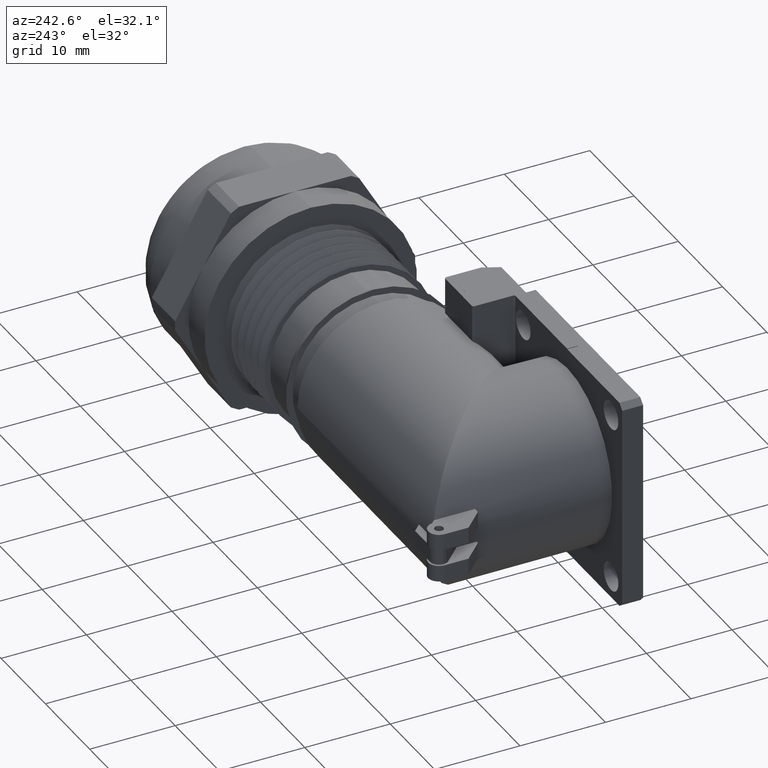
[diagram: clean part render]
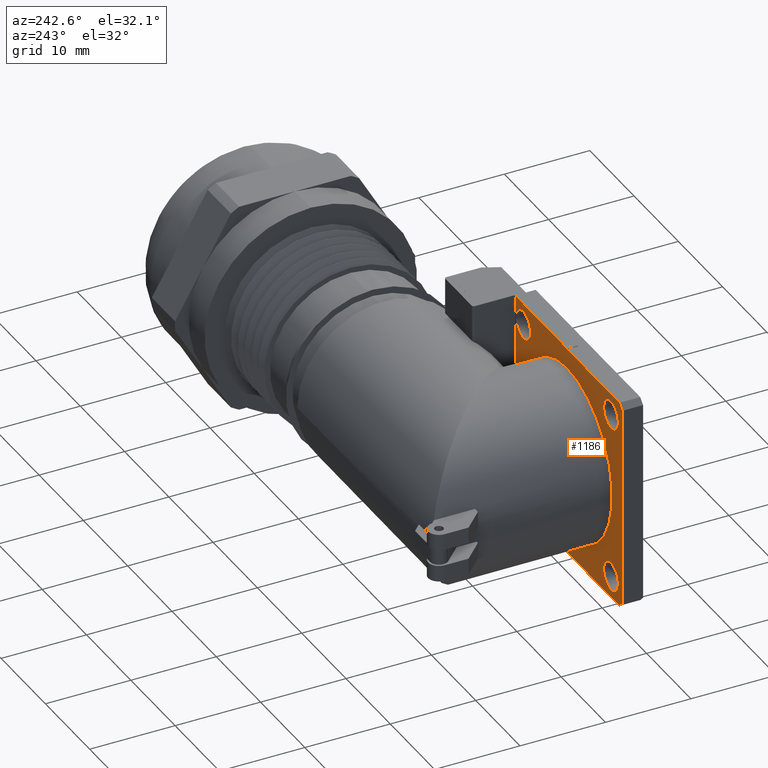
[diagram: same view with one face highlighted and labeled with its STEP entity id]
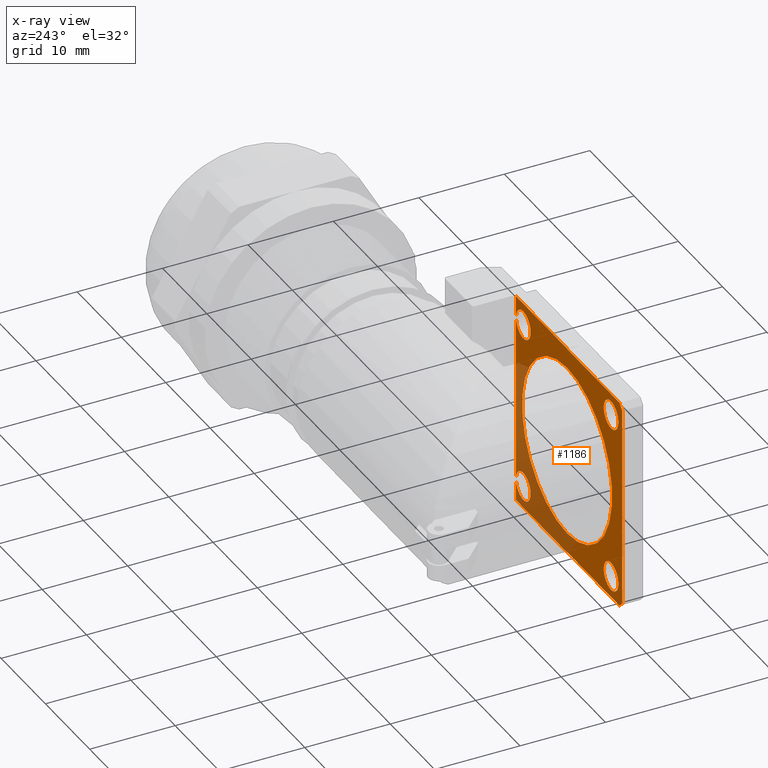
[diagram: x-ray of the same camera — body ghosted, the highlighted face saturated]
A machine part, auxiliary view. The second image highlights one B-rep face of the part: STEP entity #1186.
The next image is the same camera in x-ray: the body ghosted, the highlighted face saturated — about 28% of this face is hidden behind the body in this view.
In plain terms, the highlighted planar face has unit normal (0, -1, 0).
Its self-contained STEP definition (entity closure, byte-faithful):
#849 = VERTEX_POINT ( 'NONE', #3261 ) ;
#851 = EDGE_CURVE ( 'NONE', #849, #852, #3260, .T. ) ;
#852 = VERTEX_POINT ( 'NONE', #3255 ) ;
#854 = EDGE_CURVE ( 'NONE', #939, #958, #3254, .T. ) ;
#859 = VERTEX_POINT ( 'NONE', #3238 ) ;
#888 = EDGE_CURVE ( 'NONE', #889, #899, #3421, .T. ) ;
#889 = VERTEX_POINT ( 'NONE', #3416 ) ;
#899 = VERTEX_POINT ( 'NONE', #3394 ) ;
#914 = VERTEX_POINT ( 'NONE', #3527 ) ;
#939 = VERTEX_POINT ( 'NONE', #3474 ) ;
#958 = VERTEX_POINT ( 'NONE', #3442 ) ;
#1001 = VERTEX_POINT ( 'NONE', #3767 ) ;
#1003 = EDGE_CURVE ( 'NONE', #1001, #859, #3766, .T. ) ;
#1071 = EDGE_CURVE ( 'NONE', #914, #1104, #3689, .T. ) ;
#1104 = VERTEX_POINT ( 'NONE', #3589 ) ;
#1168 = ORIENTED_EDGE ( 'NONE', *, *, #854, .T. ) ;
#1169 = ORIENTED_EDGE ( 'NONE', *, *, #1170, .T. ) ;
#1170 = EDGE_CURVE ( 'NONE', #958, #939, #3936, .T. ) ;
#1171 = EDGE_LOOP ( 'NONE', ( #1172, #1217 ) ) ;
#1172 = ORIENTED_EDGE ( 'NONE', *, *, #888, .T. ) ;
#1184 = VERTEX_POINT ( 'NONE', #3973 ) ;
#1185 = VERTEX_POINT ( 'NONE', #3972 ) ;
#1186 = ADVANCED_FACE ( 'NONE', ( #3971, #3970, #3969, #3968, #3967, #3966 ), #3965, .F. ) ;
#1187 = ORIENTED_EDGE ( 'NONE', *, *, #1188, .F. ) ;
#1188 = EDGE_CURVE ( 'NONE', #852, #849, #3960, .T. ) ;
#1189 = ORIENTED_EDGE ( 'NONE', *, *, #851, .F. ) ;
#1193 = ORIENTED_EDGE ( 'NONE', *, *, #1003, .F. ) ;
#1194 = EDGE_CURVE ( 'NONE', #1104, #914, #3953, .T. ) ;
#1195 = EDGE_LOOP ( 'NONE', ( #1220, #1221 ) ) ;
#1196 = ORIENTED_EDGE ( 'NONE', *, *, #1235, .T. ) ;
#1217 = ORIENTED_EDGE ( 'NONE', *, *, #1218, .T. ) ;
#1218 = EDGE_CURVE ( 'NONE', #899, #889, #3851, .T. ) ;
#1220 = ORIENTED_EDGE ( 'NONE', *, *, #1194, .F. ) ;
#1221 = ORIENTED_EDGE ( 'NONE', *, *, #1071, .F. ) ;
#1227 = ORIENTED_EDGE ( 'NONE', *, *, #1228, .F. ) ;
#1228 = EDGE_CURVE ( 'NONE', #1229, #1233, #3831, .T. ) ;
#1229 = VERTEX_POINT ( 'NONE', #3827 ) ;
#1230 = ORIENTED_EDGE ( 'NONE', *, *, #1231, .F. ) ;
#1231 = EDGE_CURVE ( 'NONE', #1232, #1229, #3825, .T. ) ;
#1232 = VERTEX_POINT ( 'NONE', #4129 ) ;
#1233 = VERTEX_POINT ( 'NONE', #4128 ) ;
#1235 = EDGE_CURVE ( 'NONE', #1185, #1184, #4130, .T. ) ;
#1241 = ORIENTED_EDGE ( 'NONE', *, *, #1260, .T. ) ;
#1242 = ORIENTED_EDGE ( 'NONE', *, *, #1243, .F. ) ;
#1243 = EDGE_CURVE ( 'NONE', #1244, #1232, #4267, .T. ) ;
#1244 = VERTEX_POINT ( 'NONE', #4137 ) ;
#1245 = ORIENTED_EDGE ( 'NONE', *, *, #1246, .F. ) ;
#1246 = EDGE_CURVE ( 'NONE', #1266, #1244, #4136, .T. ) ;
#1247 = ORIENTED_EDGE ( 'NONE', *, *, #1265, .F. ) ;
#1251 = EDGE_LOOP ( 'NONE', ( #1252, #1255, #1258, #1227, #1230, #1242, #1245, #1247, #1241, #1196 ) ) ;
#1252 = ORIENTED_EDGE ( 'NONE', *, *, #1253, .F. ) ;
#1253 = EDGE_CURVE ( 'NONE', #1254, #1184, #4238, .T. ) ;
#1254 = VERTEX_POINT ( 'NONE', #4121 ) ;
#1255 = ORIENTED_EDGE ( 'NONE', *, *, #1256, .F. ) ;
#1256 = EDGE_CURVE ( 'NONE', #1257, #1254, #4120, .T. ) ;
#1257 = VERTEX_POINT ( 'NONE', #4116 ) ;
#1258 = ORIENTED_EDGE ( 'NONE', *, *, #1259, .F. ) ;
#1259 = EDGE_CURVE ( 'NONE', #1233, #1257, #4115, .T. ) ;
#1260 = EDGE_CURVE ( 'NONE', #1263, #1185, #4111, .T. ) ;
#1263 = VERTEX_POINT ( 'NONE', #4102 ) ;
#1265 = EDGE_CURVE ( 'NONE', #1263, #1266, #4101, .T. ) ;
#1266 = VERTEX_POINT ( 'NONE', #4097 ) ;
#1272 = EDGE_LOOP ( 'NONE', ( #1187, #1189 ) ) ;
#1282 = EDGE_LOOP ( 'NONE', ( #1283, #1193 ) ) ;
#1283 = ORIENTED_EDGE ( 'NONE', *, *, #1284, .F. ) ;
#1284 = EDGE_CURVE ( 'NONE', #859, #1001, #4263, .T. ) ;
#1285 = EDGE_LOOP ( 'NONE', ( #1168, #1169 ) ) ;
#3238 = CARTESIAN_POINT ( 'NONE',  ( -0.4100000000000001400, -0.4290000000000000500, -0.3249999999999999000 ) ) ;
#3250 = DIRECTION ( 'NONE',  ( 0.0000000000000000000, 0.0000000000000000000, -1.000000000000000000 ) ) ;
#3251 = DIRECTION ( 'NONE',  ( 0.0000000000000000000, -1.000000000000000000, 0.0000000000000000000 ) ) ;
#3252 = CARTESIAN_POINT ( 'NONE',  ( -1.189999999999999500, -0.4289999999999999900, -0.3899999999999999600 ) ) ;
#3253 = AXIS2_PLACEMENT_3D ( 'NONE', #3252, #3251, #3250 ) ;
#3254 = CIRCLE ( 'NONE', #3253, 0.06500000000000012700 ) ;
#3255 = CARTESIAN_POINT ( 'NONE',  ( -0.4099999999999999800, -0.4290000000000000500, 0.4549999999999995700 ) ) ;
#3256 = DIRECTION ( 'NONE',  ( -1.000000000000000000, 0.0000000000000000000, 0.0000000000000000000 ) ) ;
#3257 = DIRECTION ( 'NONE',  ( 0.0000000000000000000, 1.000000000000000000, 0.0000000000000000000 ) ) ;
#3258 = CARTESIAN_POINT ( 'NONE',  ( -0.4099999999999999800, -0.4290000000000000500, 0.3899999999999995700 ) ) ;
#3259 = AXIS2_PLACEMENT_3D ( 'NONE', #3258, #3257, #3256 ) ;
#3260 = CIRCLE ( 'NONE', #3259, 0.06499999999999998800 ) ;
#3261 = CARTESIAN_POINT ( 'NONE',  ( -0.4099999999999999800, -0.4290000000000000500, 0.3249999999999996200 ) ) ;
#3394 = CARTESIAN_POINT ( 'NONE',  ( -1.189999999999999500, -0.4289999999999999900, 0.3249999999999994000 ) ) ;
#3416 = CARTESIAN_POINT ( 'NONE',  ( -1.189999999999999500, -0.4289999999999999900, 0.4549999999999996300 ) ) ;
#3417 = DIRECTION ( 'NONE',  ( 0.0000000000000000000, 0.0000000000000000000, -1.000000000000000000 ) ) ;
#3418 = DIRECTION ( 'NONE',  ( 0.0000000000000000000, -1.000000000000000000, 0.0000000000000000000 ) ) ;
#3419 = CARTESIAN_POINT ( 'NONE',  ( -1.189999999999999500, -0.4289999999999999900, 0.3899999999999995100 ) ) ;
#3420 = AXIS2_PLACEMENT_3D ( 'NONE', #3419, #3418, #3417 ) ;
#3421 = CIRCLE ( 'NONE', #3420, 0.06500000000000012700 ) ;
#3442 = CARTESIAN_POINT ( 'NONE',  ( -1.189999999999999500, -0.4289999999999999900, -0.4550000000000000700 ) ) ;
#3474 = CARTESIAN_POINT ( 'NONE',  ( -1.189999999999999500, -0.4289999999999999900, -0.3249999999999997900 ) ) ;
#3527 = CARTESIAN_POINT ( 'NONE',  ( -0.8000000000000001600, -0.4290000000000000500, 0.4000000000000000200 ) ) ;
#3589 = CARTESIAN_POINT ( 'NONE',  ( -0.8000000000000001600, -0.4290000000000000500, -0.4000000000000000200 ) ) ;
#3685 = DIRECTION ( 'NONE',  ( 0.0000000000000000000, 0.0000000000000000000, -1.000000000000000000 ) ) ;
#3686 = DIRECTION ( 'NONE',  ( 0.0000000000000000000, 1.000000000000000000, 0.0000000000000000000 ) ) ;
#3687 = CARTESIAN_POINT ( 'NONE',  ( -0.8000000000000001600, -0.4290000000000000500, 0.0000000000000000000 ) ) ;
#3688 = AXIS2_PLACEMENT_3D ( 'NONE', #3687, #3686, #3685 ) ;
#3689 = CIRCLE ( 'NONE', #3688, 0.4000000000000000200 ) ;
#3762 = DIRECTION ( 'NONE',  ( -1.000000000000000000, 0.0000000000000000000, 0.0000000000000000000 ) ) ;
#3763 = DIRECTION ( 'NONE',  ( 0.0000000000000000000, 1.000000000000000000, 0.0000000000000000000 ) ) ;
#3764 = CARTESIAN_POINT ( 'NONE',  ( -0.4100000000000001400, -0.4290000000000000500, -0.3899999999999998500 ) ) ;
#3765 = AXIS2_PLACEMENT_3D ( 'NONE', #3764, #3763, #3762 ) ;
#3766 = CIRCLE ( 'NONE', #3765, 0.06499999999999998800 ) ;
#3767 = CARTESIAN_POINT ( 'NONE',  ( -0.4100000000000001400, -0.4290000000000000500, -0.4549999999999998500 ) ) ;
#3822 = DIRECTION ( 'NONE',  ( -0.7071067811865465700, 0.0000000000000000000, -0.7071067811865484600 ) ) ;
#3823 = VECTOR ( 'NONE', #3822, 39.37007874015748100 ) ;
#3824 = CARTESIAN_POINT ( 'NONE',  ( -1.289999999999999600, -0.4289999999999999900, 0.4649999999999990800 ) ) ;
#3825 = LINE ( 'NONE', #3824, #3823 ) ;
#3827 = CARTESIAN_POINT ( 'NONE',  ( -1.289999999999999600, -0.4289999999999999900, 0.4649999999999990300 ) ) ;
#3828 = DIRECTION ( 'NONE',  ( 1.174988384371725800E-015, 0.0000000000000000000, -1.000000000000000000 ) ) ;
#3829 = VECTOR ( 'NONE', #3828, 39.37007874015748100 ) ;
#3830 = CARTESIAN_POINT ( 'NONE',  ( -1.289999999999998500, -0.4289999999999999900, -0.4650000000000010200 ) ) ;
#3831 = LINE ( 'NONE', #3830, #3829 ) ;
#3847 = DIRECTION ( 'NONE',  ( 0.0000000000000000000, 0.0000000000000000000, -1.000000000000000000 ) ) ;
#3848 = DIRECTION ( 'NONE',  ( 0.0000000000000000000, -1.000000000000000000, 0.0000000000000000000 ) ) ;
#3849 = CARTESIAN_POINT ( 'NONE',  ( -1.189999999999999500, -0.4289999999999999900, 0.3899999999999995100 ) ) ;
#3850 = AXIS2_PLACEMENT_3D ( 'NONE', #3849, #3848, #3847 ) ;
#3851 = CIRCLE ( 'NONE', #3850, 0.06500000000000012700 ) ;
#3932 = DIRECTION ( 'NONE',  ( 0.0000000000000000000, 0.0000000000000000000, -1.000000000000000000 ) ) ;
#3933 = DIRECTION ( 'NONE',  ( 0.0000000000000000000, -1.000000000000000000, 0.0000000000000000000 ) ) ;
#3934 = CARTESIAN_POINT ( 'NONE',  ( -1.189999999999999500, -0.4289999999999999900, -0.3899999999999999600 ) ) ;
#3935 = AXIS2_PLACEMENT_3D ( 'NONE', #3934, #3933, #3932 ) ;
#3936 = CIRCLE ( 'NONE', #3935, 0.06500000000000012700 ) ;
#3944 = DIRECTION ( 'NONE',  ( 0.0000000000000000000, 0.0000000000000000000, -1.000000000000000000 ) ) ;
#3945 = DIRECTION ( 'NONE',  ( 0.0000000000000000000, 1.000000000000000000, 0.0000000000000000000 ) ) ;
#3946 = CARTESIAN_POINT ( 'NONE',  ( -0.8000000000000001600, -0.4290000000000000500, 0.0000000000000000000 ) ) ;
#3947 = AXIS2_PLACEMENT_3D ( 'NONE', #3946, #3945, #3944 ) ;
#3953 = CIRCLE ( 'NONE', #3947, 0.4000000000000000200 ) ;
#3956 = DIRECTION ( 'NONE',  ( -1.000000000000000000, 0.0000000000000000000, 0.0000000000000000000 ) ) ;
#3957 = DIRECTION ( 'NONE',  ( 0.0000000000000000000, 1.000000000000000000, 0.0000000000000000000 ) ) ;
#3958 = CARTESIAN_POINT ( 'NONE',  ( -0.4099999999999999800, -0.4290000000000000500, 0.3899999999999995700 ) ) ;
#3959 = AXIS2_PLACEMENT_3D ( 'NONE', #3958, #3957, #3956 ) ;
#3960 = CIRCLE ( 'NONE', #3959, 0.06499999999999998800 ) ;
#3961 = DIRECTION ( 'NONE',  ( 0.0000000000000000000, 0.0000000000000000000, -1.000000000000000000 ) ) ;
#3962 = DIRECTION ( 'NONE',  ( 0.0000000000000000000, -1.000000000000000000, 0.0000000000000000000 ) ) ;
#3963 = CARTESIAN_POINT ( 'NONE',  ( -0.3349999999999990200, -0.4290000000000000500, 0.4921261811023622300 ) ) ;
#3964 = AXIS2_PLACEMENT_3D ( 'NONE', #3963, #3962, #3961 ) ;
#3965 = PLANE ( 'NONE',  #3964 ) ;
#3966 = FACE_BOUND ( 'NONE', #1282, .T. ) ;
#3967 = FACE_BOUND ( 'NONE', #1171, .T. ) ;
#3968 = FACE_BOUND ( 'NONE', #1285, .T. ) ;
#3969 = FACE_BOUND ( 'NONE', #1195, .T. ) ;
#3970 = FACE_OUTER_BOUND ( 'NONE', #1251, .T. ) ;
#3971 = FACE_BOUND ( 'NONE', #1272, .T. ) ;
#3972 = CARTESIAN_POINT ( 'NONE',  ( -0.3439999999999990300, -0.4290000000000000500, -0.4921261811023622300 ) ) ;
#3973 = CARTESIAN_POINT ( 'NONE',  ( -0.7999999999999993800, -0.4290000000000000500, -0.4921261811023622300 ) ) ;
#4094 = DIRECTION ( 'NONE',  ( -1.000000000000000000, 0.0000000000000000000, 0.0000000000000000000 ) ) ;
#4095 = VECTOR ( 'NONE', #4094, 39.37007874015748100 ) ;
#4096 = CARTESIAN_POINT ( 'NONE',  ( -0.3349999999999990200, -0.4290000000000000500, -0.4921261811023622300 ) ) ;
#4097 = CARTESIAN_POINT ( 'NONE',  ( -0.7999999999999993800, -0.4290000000000000500, 0.4921261811023622300 ) ) ;
#4098 = DIRECTION ( 'NONE',  ( -1.000000000000000000, 0.0000000000000000000, 0.0000000000000000000 ) ) ;
#4099 = VECTOR ( 'NONE', #4098, 39.37007874015748100 ) ;
#4100 = CARTESIAN_POINT ( 'NONE',  ( -0.3349999999999990200, -0.4290000000000000500, 0.4921261811023622300 ) ) ;
#4101 = LINE ( 'NONE', #4100, #4099 ) ;
#4102 = CARTESIAN_POINT ( 'NONE',  ( -0.3439999999999990300, -0.4290000000000000500, 0.4921261811023622300 ) ) ;
#4108 = DIRECTION ( 'NONE',  ( 0.0000000000000000000, 0.0000000000000000000, -1.000000000000000000 ) ) ;
#4109 = VECTOR ( 'NONE', #4108, 39.37007874015748100 ) ;
#4110 = CARTESIAN_POINT ( 'NONE',  ( -0.3439999999999990300, -0.4290000000000000500, -0.4921261811023622300 ) ) ;
#4111 = LINE ( 'NONE', #4110, #4109 ) ;
#4112 = DIRECTION ( 'NONE',  ( 0.7071067811865541200, 0.0000000000000000000, -0.7071067811865406900 ) ) ;
#4113 = VECTOR ( 'NONE', #4112, 39.37007874015748900 ) ;
#4114 = CARTESIAN_POINT ( 'NONE',  ( -1.264999999999998100, -0.4289999999999999900, -0.4900000000000009900 ) ) ;
#4115 = LINE ( 'NONE', #4114, #4113 ) ;
#4116 = CARTESIAN_POINT ( 'NONE',  ( -1.264999999999998100, -0.4289999999999999900, -0.4900000000000009900 ) ) ;
#4117 = DIRECTION ( 'NONE',  ( 1.000000000000000000, 0.0000000000000000000, 1.174988384371729400E-015 ) ) ;
#4118 = VECTOR ( 'NONE', #4117, 39.37007874015748100 ) ;
#4119 = CARTESIAN_POINT ( 'NONE',  ( -0.7999999999999993800, -0.4289999999999999900, -0.4900000000000004400 ) ) ;
#4120 = LINE ( 'NONE', #4119, #4118 ) ;
#4121 = CARTESIAN_POINT ( 'NONE',  ( -0.7999999999999993800, -0.4290000000000000500, -0.4900000000000003200 ) ) ;
#4122 = DIRECTION ( 'NONE',  ( 0.0000000000000000000, 0.0000000000000000000, -1.000000000000000000 ) ) ;
#4128 = CARTESIAN_POINT ( 'NONE',  ( -1.289999999999998500, -0.4289999999999999900, -0.4650000000000010200 ) ) ;
#4129 = CARTESIAN_POINT ( 'NONE',  ( -1.264999999999999700, -0.4289999999999999900, 0.4899999999999989900 ) ) ;
#4130 = LINE ( 'NONE', #4096, #4095 ) ;
#4133 = DIRECTION ( 'NONE',  ( 0.0000000000000000000, 0.0000000000000000000, -1.000000000000000000 ) ) ;
#4134 = VECTOR ( 'NONE', #4133, 39.37007874015748100 ) ;
#4135 = CARTESIAN_POINT ( 'NONE',  ( -0.7999999999999993800, -0.4290000000000000500, 0.4921261811023622300 ) ) ;
#4136 = LINE ( 'NONE', #4135, #4134 ) ;
#4137 = CARTESIAN_POINT ( 'NONE',  ( -0.7999999999999993800, -0.4290000000000000500, 0.4899999999999994900 ) ) ;
#4138 = DIRECTION ( 'NONE',  ( -1.000000000000000000, 0.0000000000000000000, -1.028114836325259500E-015 ) ) ;
#4139 = VECTOR ( 'NONE', #4138, 39.37007874015748100 ) ;
#4236 = VECTOR ( 'NONE', #4122, 39.37007874015748100 ) ;
#4237 = CARTESIAN_POINT ( 'NONE',  ( -0.7999999999999993800, -0.4290000000000000500, 0.4921261811023622300 ) ) ;
#4238 = LINE ( 'NONE', #4237, #4236 ) ;
#4259 = DIRECTION ( 'NONE',  ( -1.000000000000000000, 0.0000000000000000000, 0.0000000000000000000 ) ) ;
#4260 = DIRECTION ( 'NONE',  ( 0.0000000000000000000, 1.000000000000000000, 0.0000000000000000000 ) ) ;
#4261 = CARTESIAN_POINT ( 'NONE',  ( -0.4100000000000001400, -0.4290000000000000500, -0.3899999999999998500 ) ) ;
#4262 = AXIS2_PLACEMENT_3D ( 'NONE', #4261, #4260, #4259 ) ;
#4263 = CIRCLE ( 'NONE', #4262, 0.06499999999999998800 ) ;
#4266 = CARTESIAN_POINT ( 'NONE',  ( -1.264999999999999700, -0.4289999999999999900, 0.4899999999999989900 ) ) ;
#4267 = LINE ( 'NONE', #4266, #4139 ) ;